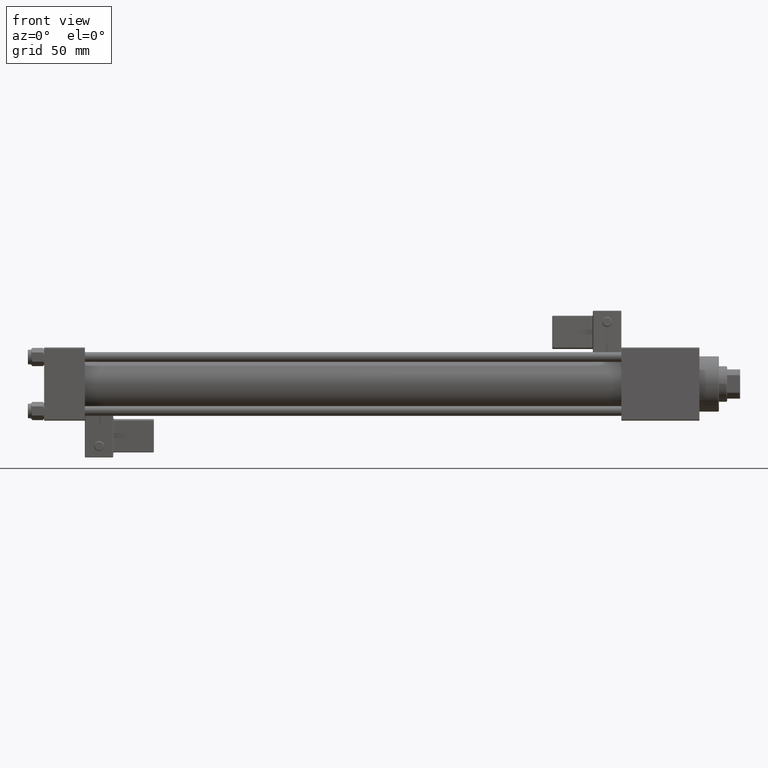
[diagram: clean part render]
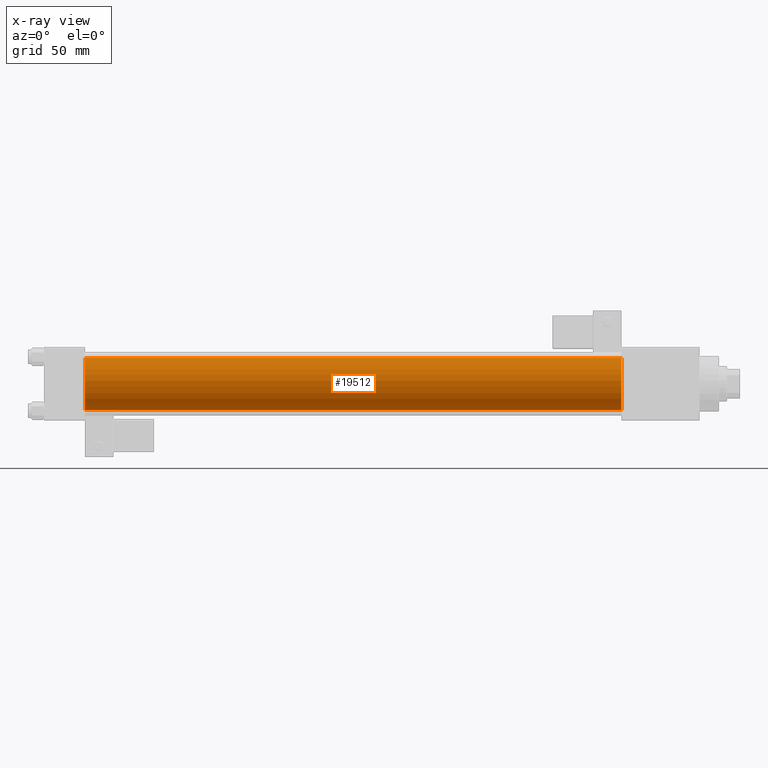
[diagram: x-ray — body ghosted, one internal face saturated and labeled with its STEP entity id]
A machine part, front view, then the same camera in x-ray: the body is ghosted and one INTERNAL B-rep face — a face not visible from any outside direction — is saturated and labeled: STEP entity #19512.
In plain terms, the highlighted cylindrical surface (edge-blend (fillet) strip) has radius 16 mm, axis along (-1, -0, -0).
Its self-contained STEP definition (entity closure, byte-faithful):
#31 = ORIENTED_EDGE ( 'NONE', *, *, #22413, .F. ) ;
#1056 = DIRECTION ( 'NONE',  ( 1.000000000000000000, 0.000000000000000000, 0.000000000000000000 ) ) ;
#2484 = VERTEX_POINT ( 'NONE', #13712 ) ;
#9133 = DIRECTION ( 'NONE',  ( -1.000000000000000000, -0.000000000000000000, -0.000000000000000000 ) ) ;
#9618 = ORIENTED_EDGE ( 'NONE', *, *, #42712, .F. ) ;
#11747 = CARTESIAN_POINT ( 'NONE',  ( 355.0000000000000568, -6.426503353294456087E-16, -16.00000000000000000 ) ) ;
#13306 = CARTESIAN_POINT ( 'NONE',  ( 25.00000000000000000, -2.602085213965210642E-15, 0.000000000000000000 ) ) ;
#13712 = CARTESIAN_POINT ( 'NONE',  ( 355.0000000000000568, -2.602085213965210642E-15, 16.00000000000000000 ) ) ;
#13856 = CARTESIAN_POINT ( 'NONE',  ( 25.00000000000000000, -6.426503353294456087E-16, -16.00000000000000000 ) ) ;
#15178 = FACE_OUTER_BOUND ( 'NONE', #38845, .T. ) ;
#15750 = CARTESIAN_POINT ( 'NONE',  ( 25.00000000000000000, -2.602085213965210642E-15, 16.00000000000000000 ) ) ;
#16240 = CARTESIAN_POINT ( 'NONE',  ( 355.0000000000000568, -2.602085213965210642E-15, 0.000000000000000000 ) ) ;
#19512 = ADVANCED_FACE ( 'NONE', ( #15178 ), #31743, .F. ) ;
#21736 = AXIS2_PLACEMENT_3D ( 'NONE', #13306, #1056, #34223 ) ;
#22413 = EDGE_CURVE ( 'NONE', #47404, #35874, #33869, .T. ) ;
#23250 = VECTOR ( 'NONE', #47242, 1000.000000000000000 ) ;
#24720 = LINE ( 'NONE', #53800, #27402 ) ;
#25487 = CARTESIAN_POINT ( 'NONE',  ( 355.0000000000000568, -2.602085213965210642E-15, 16.00000000000000000 ) ) ;
#27402 = VECTOR ( 'NONE', #33142, 1000.000000000000000 ) ;
#28562 = AXIS2_PLACEMENT_3D ( 'NONE', #49543, #32160, #28866 ) ;
#28866 = DIRECTION ( 'NONE',  ( 0.000000000000000000, 0.000000000000000000, -1.000000000000000000 ) ) ;
#31743 = CYLINDRICAL_SURFACE ( 'NONE', #52008, 16.00000000000000000 ) ;
#32160 = DIRECTION ( 'NONE',  ( 1.000000000000000000, 0.000000000000000000, 0.000000000000000000 ) ) ;
#32426 = ORIENTED_EDGE ( 'NONE', *, *, #44743, .T. ) ;
#33071 = DIRECTION ( 'NONE',  ( 0.000000000000000000, 0.000000000000000000, 1.000000000000000000 ) ) ;
#33142 = DIRECTION ( 'NONE',  ( -1.000000000000000000, -0.000000000000000000, -0.000000000000000000 ) ) ;
#33869 = CIRCLE ( 'NONE', #21736, 16.00000000000000000 ) ;
#34223 = DIRECTION ( 'NONE',  ( 0.000000000000000000, 0.000000000000000000, -1.000000000000000000 ) ) ;
#34750 = EDGE_CURVE ( 'NONE', #40599, #35874, #24720, .T. ) ;
#35874 = VERTEX_POINT ( 'NONE', #13856 ) ;
#38289 = LINE ( 'NONE', #25487, #23250 ) ;
#38845 = EDGE_LOOP ( 'NONE', ( #32426, #44923, #31, #9618 ) ) ;
#40599 = VERTEX_POINT ( 'NONE', #11747 ) ;
#40723 = CIRCLE ( 'NONE', #28562, 16.00000000000000000 ) ;
#42712 = EDGE_CURVE ( 'NONE', #2484, #47404, #38289, .T. ) ;
#44743 = EDGE_CURVE ( 'NONE', #2484, #40599, #40723, .T. ) ;
#44923 = ORIENTED_EDGE ( 'NONE', *, *, #34750, .T. ) ;
#47242 = DIRECTION ( 'NONE',  ( -1.000000000000000000, -0.000000000000000000, -0.000000000000000000 ) ) ;
#47404 = VERTEX_POINT ( 'NONE', #15750 ) ;
#49543 = CARTESIAN_POINT ( 'NONE',  ( 355.0000000000000568, -2.602085213965210642E-15, 0.000000000000000000 ) ) ;
#52008 = AXIS2_PLACEMENT_3D ( 'NONE', #16240, #9133, #33071 ) ;
#53800 = CARTESIAN_POINT ( 'NONE',  ( 355.0000000000000568, -6.426503353294456087E-16, -16.00000000000000000 ) ) ;